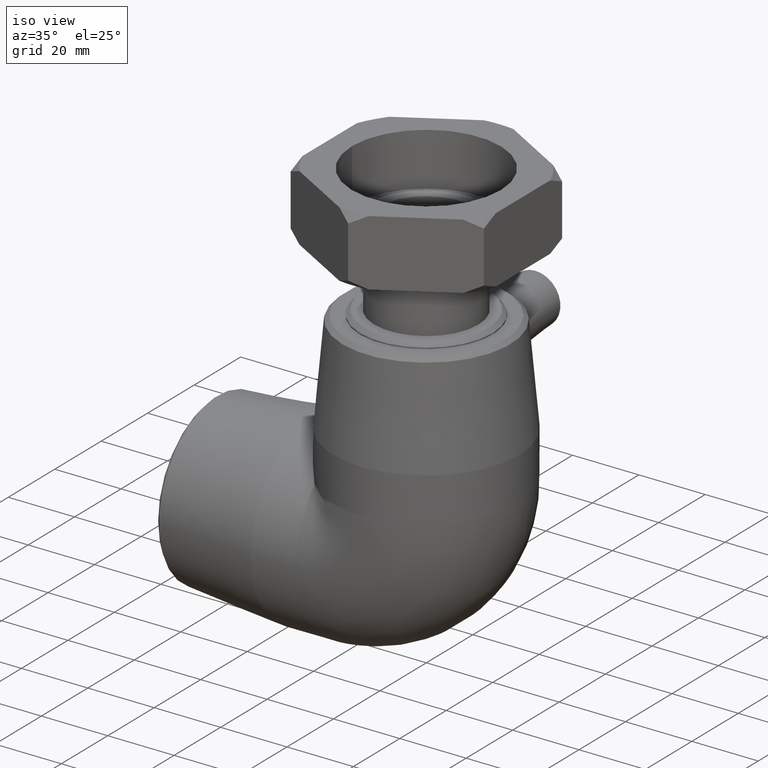
[diagram: clean part render]
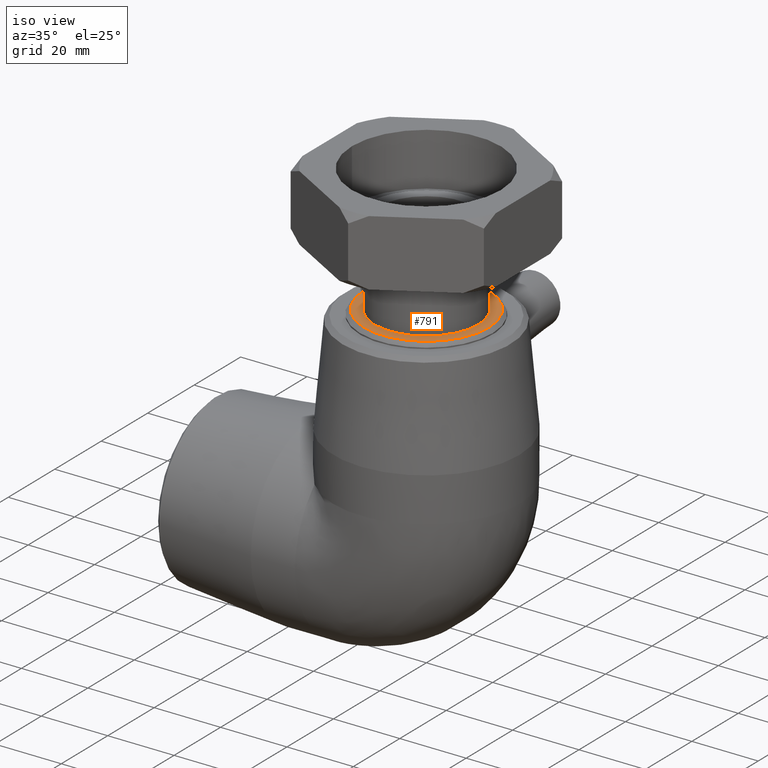
[diagram: same view with one face highlighted and labeled with its STEP entity id]
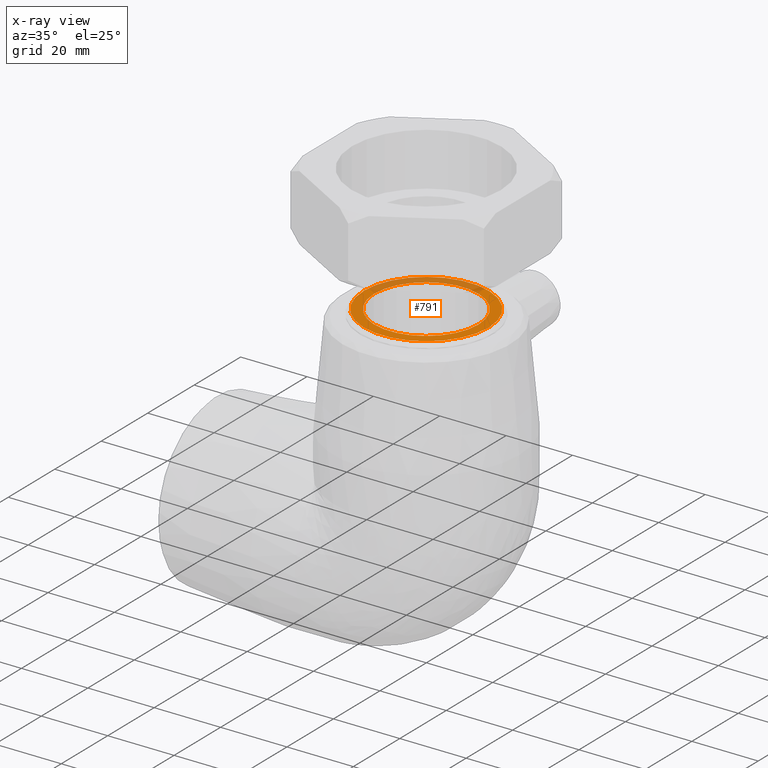
[diagram: x-ray of the same camera — body ghosted, the highlighted face saturated]
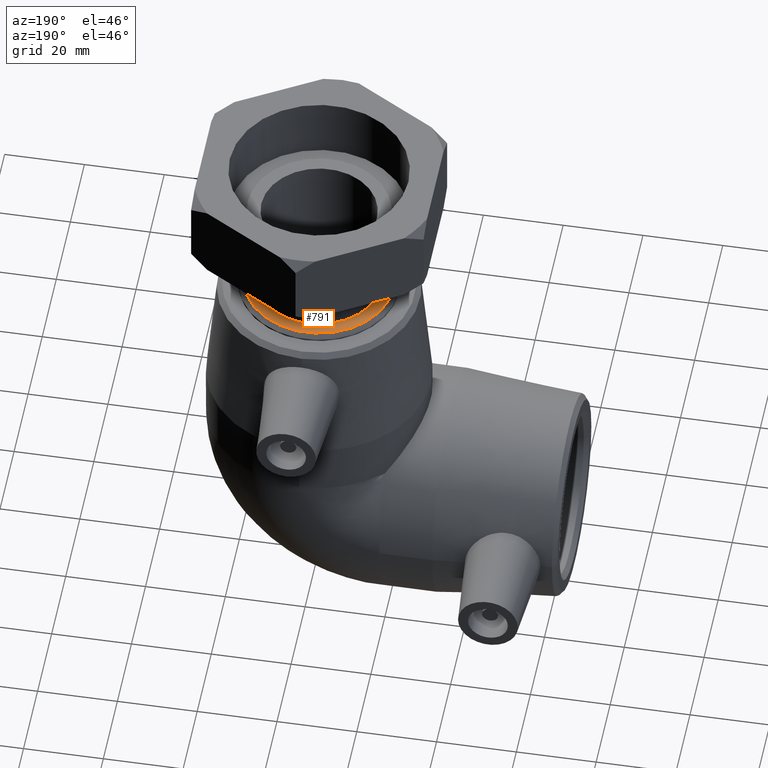
[diagram: same view with one face highlighted and labeled with its STEP entity id]
A machine part, iso view. The second image highlights one B-rep face of the part: STEP entity #791.
The next image is the same camera in x-ray: the body ghosted, the highlighted face saturated — about 29% of this face is hidden behind the body in this view.
A second angle (auxiliary view) of the same face is appended — the face is thin or edge-on in the first view.
In plain terms, the highlighted planar face has unit normal (0, 0, 1).
Its self-contained STEP definition (entity closure, byte-faithful):
#103=PLANE('',#876);
#124=FACE_BOUND('',#253,.T.);
#184=FACE_OUTER_BOUND('',#252,.T.);
#252=EDGE_LOOP('',(#670));
#253=EDGE_LOOP('',(#671));
#340=CIRCLE('',#872,18.8);
#343=CIRCLE('',#877,15.69575);
#416=VERTEX_POINT('',#1363);
#419=VERTEX_POINT('',#1371);
#512=EDGE_CURVE('',#416,#416,#340,.T.);
#515=EDGE_CURVE('',#419,#419,#343,.T.);
#670=ORIENTED_EDGE('',*,*,#512,.F.);
#671=ORIENTED_EDGE('',*,*,#515,.T.);
#791=ADVANCED_FACE('',(#184,#124),#103,.T.);
#872=AXIS2_PLACEMENT_3D('',#1364,#1046,#1047);
#876=AXIS2_PLACEMENT_3D('',#1370,#1054,#1055);
#877=AXIS2_PLACEMENT_3D('',#1372,#1056,#1057);
#1046=DIRECTION('center_axis',(-2.08166817117217E-16,0.,-1.));
#1047=DIRECTION('ref_axis',(1.,0.,-2.08166817117217E-16));
#1054=DIRECTION('center_axis',(2.08166817117217E-16,0.,1.));
#1055=DIRECTION('ref_axis',(1.,0.,0.));
#1056=DIRECTION('center_axis',(-2.08166817117217E-16,0.,-1.));
#1057=DIRECTION('ref_axis',(1.,0.,-2.08166817117217E-16));
#1363=CARTESIAN_POINT('',(-18.8,2.30233598239703E-15,65.6));
#1364=CARTESIAN_POINT('Origin',(1.36557432028894E-14,0.,65.6));
#1370=CARTESIAN_POINT('Origin',(-20.,0.,65.6));
#1371=CARTESIAN_POINT('',(-15.69575,0.,65.6));
#1372=CARTESIAN_POINT('Origin',(1.36557432028894E-14,0.,65.6));